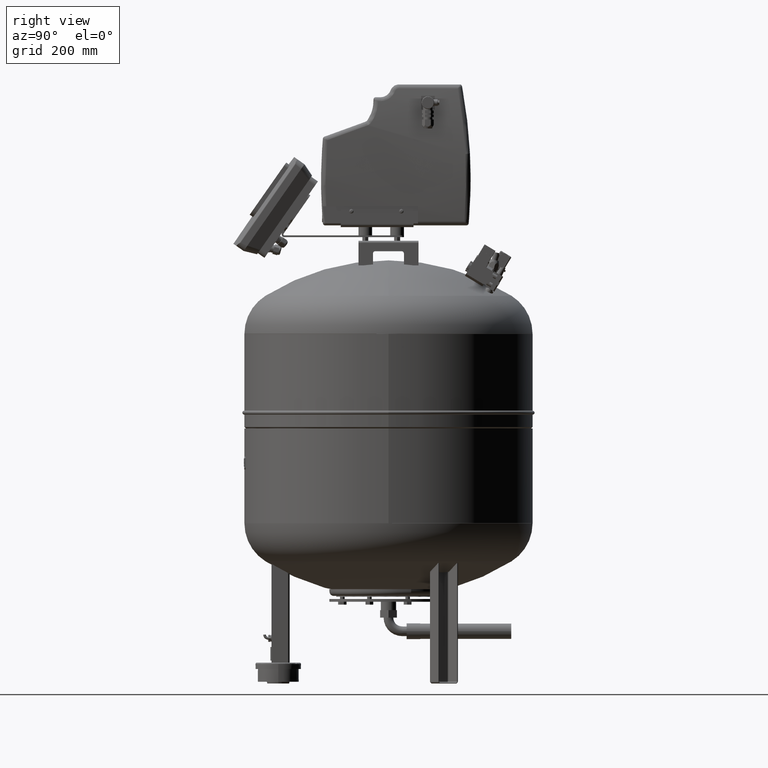
[diagram: clean part render]
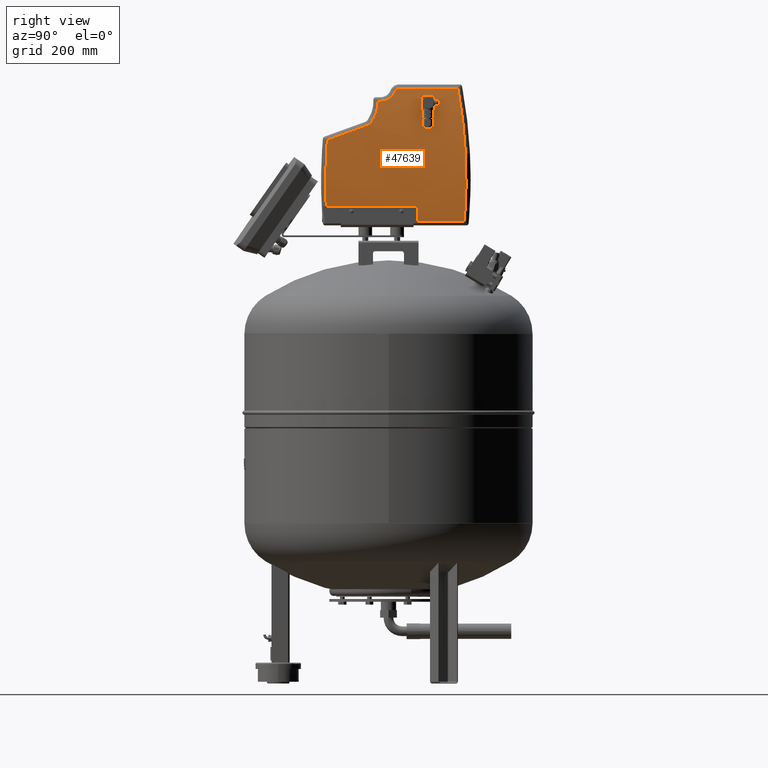
[diagram: same view with one face highlighted and labeled with its STEP entity id]
A machine part, right view. The second image highlights one B-rep face of the part: STEP entity #47639.
In plain terms, the highlighted cylindrical surface (partial cylindrical patch) has radius 1323.98 mm, axis along (-0, -1, -0).
Its self-contained STEP definition (entity closure, byte-faithful):
#46781=AXIS2_PLACEMENT_3D('Circle Axis2P3D',#46779,#46780,$) ;
#46829=AXIS2_PLACEMENT_3D('Circle Axis2P3D',#46827,#46828,$) ;
#47319=AXIS2_PLACEMENT_3D('Cylinder Axis2P3D',#47316,#47317,#47318) ;
#47332=AXIS2_PLACEMENT_3D('Circle Axis2P3D',#47330,#47331,$) ;
#46748=CARTESIAN_POINT('Line Origine',(81.2272163518,86.7705574858,1263.)) ;
#46752=CARTESIAN_POINT('Vertex',(81.2272163525,101.770557486,1263.)) ;
#46754=CARTESIAN_POINT('Vertex',(81.2272163525,71.7705574855,1263.)) ;
#46779=CARTESIAN_POINT('Axis2P3D Location',(-1233.979346,101.770557486,1110.83887861)) ;
#46783=CARTESIAN_POINT('Vertex',(77.4087103628,101.770557486,1293.)) ;
#46803=CARTESIAN_POINT('Line Origine',(77.4087103624,86.7705574858,1293.)) ;
#46807=CARTESIAN_POINT('Vertex',(77.4087103628,71.7705574855,1293.)) ;
#46827=CARTESIAN_POINT('Axis2P3D Location',(-1233.979346,71.7705574858,1110.83887861)) ;
#47316=CARTESIAN_POINT('Axis2P3D Location',(-1233.97935138,16.,1110.83887792)) ;
#47321=CARTESIAN_POINT('Line Origine',(88.6014415452,16.,1050.)) ;
#47325=CARTESIAN_POINT('Vertex',(88.6014415454,-136.890331376,1050.)) ;
#47327=CARTESIAN_POINT('Vertex',(88.6014415452,64.9949999992,1050.)) ;
#47330=CARTESIAN_POINT('Axis2P3D Location',(-1233.97935138,64.9949999992,1110.83887792)) ;
#47334=CARTESIAN_POINT('Vertex',(86.6911511569,64.9949999992,1017.29345254)) ;
#47337=CARTESIAN_POINT('Line Origine',(86.6911511569,16.,1017.29345254)) ;
#47341=CARTESIAN_POINT('Vertex',(86.6911511569,166.840028236,1017.29345254)) ;
#47345=CARTESIAN_POINT('Control Point',(86.9578729555,167.152394978,1021.13841947)) ;
#47346=CARTESIAN_POINT('Control Point',(86.8708201175,167.050382123,1019.85647135)) ;
#47347=CARTESIAN_POINT('Control Point',(86.7819142039,166.94616983,1018.57484329)) ;
#47348=CARTESIAN_POINT('Control Point',(86.6911601925,166.839763282,1017.2935801)) ;
#47349=CARTESIAN_POINT('Vertex',(86.9578729555,167.152394978,1021.13841947)) ;
#47353=CARTESIAN_POINT('Control Point',(88.8833229022,169.301893403,1165.20493232)) ;
#47354=CARTESIAN_POINT('Control Point',(89.1044834662,169.568867599,1159.82354023)) ;
#47355=CARTESIAN_POINT('Control Point',(89.2983257278,169.803434048,1154.43990403)) ;
#47356=CARTESIAN_POINT('Control Point',(89.4648009935,170.005506811,1149.05527352)) ;
#47357=CARTESIAN_POINT('Control Point',(89.8624005501,170.490443968,1133.65759643)) ;
#47358=CARTESIAN_POINT('Control Point',(90.0362221517,170.71047628,1118.24027209)) ;
#47359=CARTESIAN_POINT('Control Point',(90.0543567521,170.741239123,1108.22443878)) ;
#47360=CARTESIAN_POINT('Control Point',(89.8746861478,170.549664525,1084.75502128)) ;
#47361=CARTESIAN_POINT('Control Point',(89.1753687143,169.743027885,1061.30273919)) ;
#47362=CARTESIAN_POINT('Control Point',(88.6052936797,169.080392259,1047.89950741)) ;
#47363=CARTESIAN_POINT('Control Point',(87.8655141937,168.216014226,1034.50442806)) ;
#47364=CARTESIAN_POINT('Control Point',(86.9578729555,167.152394978,1021.13841947)) ;
#47365=CARTESIAN_POINT('Vertex',(88.8833229022,169.301893403,1165.20493232)) ;
#47369=CARTESIAN_POINT('Control Point',(75.0467727337,152.7385902,1309.26248858)) ;
#47370=CARTESIAN_POINT('Control Point',(78.2348796009,156.552507812,1288.23013683)) ;
#47371=CARTESIAN_POINT('Control Point',(81.0159815425,159.879255108,1267.03210556)) ;
#47372=CARTESIAN_POINT('Control Point',(83.3897371833,162.715167039,1245.57455088)) ;
#47373=CARTESIAN_POINT('Control Point',(85.9896810037,165.825441092,1216.6910348)) ;
#47374=CARTESIAN_POINT('Control Point',(87.799685412,167.997168164,1187.68836826)) ;
#47375=CARTESIAN_POINT('Control Point',(88.2139424155,168.494955965,1180.19764632)) ;
#47376=CARTESIAN_POINT('Control Point',(88.5751535038,168.929886406,1172.70346792)) ;
#47377=CARTESIAN_POINT('Control Point',(88.8833229022,169.301893403,1165.20493232)) ;
#47378=CARTESIAN_POINT('Vertex',(75.0467727337,152.7385902,1309.26248858)) ;
#47382=CARTESIAN_POINT('Control Point',(75.0107574565,152.695505276,1309.49994066)) ;
#47383=CARTESIAN_POINT('Control Point',(75.0227694668,152.709875197,1309.42079277)) ;
#47384=CARTESIAN_POINT('Control Point',(75.034774559,152.724236838,1309.34164208)) ;
#47385=CARTESIAN_POINT('Control Point',(75.0467727337,152.7385902,1309.26248858)) ;
#47386=CARTESIAN_POINT('Vertex',(75.0107574565,152.695505276,1309.49994066)) ;
#47389=CARTESIAN_POINT('Line Origine',(75.0106742755,16.,1309.50048874)) ;
#47393=CARTESIAN_POINT('Vertex',(75.0106742755,23.3788220938,1309.50048874)) ;
#47397=CARTESIAN_POINT('Control Point',(75.1261803748,19.5625621211,1308.73791685)) ;
#47398=CARTESIAN_POINT('Control Point',(75.0695719938,20.4625917182,1309.11238226)) ;
#47399=CARTESIAN_POINT('Control Point',(75.0301142228,21.4208404933,1309.3724105)) ;
#47400=CARTESIAN_POINT('Control Point',(75.0106838062,22.4033226956,1309.50042594)) ;
#47401=CARTESIAN_POINT('Control Point',(75.0106742755,23.3788220938,1309.50048874)) ;
#47402=CARTESIAN_POINT('Vertex',(75.1261803748,19.5625621211,1308.73791685)) ;
#47406=CARTESIAN_POINT('Control Point',(75.1350458919,19.4246187811,1308.67926241)) ;
#47407=CARTESIAN_POINT('Control Point',(75.1320365394,19.4704599168,1308.69917536)) ;
#47408=CARTESIAN_POINT('Control Point',(75.1290810981,19.516442857,1308.71872851)) ;
#47409=CARTESIAN_POINT('Control Point',(75.1261803748,19.5625621211,1308.73791685)) ;
#47410=CARTESIAN_POINT('Vertex',(75.1350458919,19.4246187811,1308.67926241)) ;
#47414=CARTESIAN_POINT('Control Point',(75.4203416513,16.5468196525,1306.78215228)) ;
#47415=CARTESIAN_POINT('Control Point',(75.3023214702,17.384589973,1307.57082742)) ;
#47416=CARTESIAN_POINT('Control Point',(75.2044624846,18.3672034368,1308.21993121)) ;
#47417=CARTESIAN_POINT('Control Point',(75.1350458919,19.4246187811,1308.67926241)) ;
#47418=CARTESIAN_POINT('Vertex',(75.4203416513,16.5468196525,1306.78215228)) ;
#47422=CARTESIAN_POINT('Control Point',(75.4452008073,16.3745612409,1306.6159578)) ;
#47423=CARTESIAN_POINT('Control Point',(75.4368178823,16.4312611379,1306.67202569)) ;
#47424=CARTESIAN_POINT('Control Point',(75.4285307164,16.4886892922,1306.72742849)) ;
#47425=CARTESIAN_POINT('Control Point',(75.4203416513,16.5468196525,1306.78215228)) ;
#47426=CARTESIAN_POINT('Vertex',(75.4452008073,16.3745612409,1306.6159578)) ;
#47430=CARTESIAN_POINT('Control Point',(75.6936301361,15.0161254024,1304.94710641)) ;
#47431=CARTESIAN_POINT('Control Point',(75.6043587762,15.4079406909,1305.54943166)) ;
#47432=CARTESIAN_POINT('Control Point',(75.5207353613,15.8636654094,1306.11075669)) ;
#47433=CARTESIAN_POINT('Control Point',(75.4452008073,16.3745612409,1306.6159578)) ;
#47434=CARTESIAN_POINT('Vertex',(75.6936301361,15.0161254024,1304.94710641)) ;
#47438=CARTESIAN_POINT('Control Point',(75.9681420673,14.0624051858,1303.08582143)) ;
#47439=CARTESIAN_POINT('Control Point',(75.8726985532,14.3141458122,1303.73616203)) ;
#47440=CARTESIAN_POINT('Control Point',(75.7804907543,14.6348909476,1304.36104673)) ;
#47441=CARTESIAN_POINT('Control Point',(75.6936301361,15.0161254024,1304.94710641)) ;
#47442=CARTESIAN_POINT('Vertex',(75.9681420673,14.0624051858,1303.08582143)) ;
#47446=CARTESIAN_POINT('Control Point',(77.5635559464,6.99256394617,1291.88175991)) ;
#47447=CARTESIAN_POINT('Control Point',(77.2967628801,8.81868111297,1293.81450949)) ;
#47448=CARTESIAN_POINT('Control Point',(76.9997569086,10.4664050283,1295.93987209)) ;
#47449=CARTESIAN_POINT('Control Point',(76.6759054092,11.9105149295,1298.22273058)) ;
#47450=CARTESIAN_POINT('Control Point',(76.3308358453,13.1054236949,1300.61446976)) ;
#47451=CARTESIAN_POINT('Control Point',(75.9681420673,14.0624051858,1303.08582143)) ;
#47452=CARTESIAN_POINT('Vertex',(77.5635559464,6.99256394617,1291.88175991)) ;
#47456=CARTESIAN_POINT('Control Point',(77.572027373,6.93442104343,1291.8203791)) ;
#47457=CARTESIAN_POINT('Control Point',(77.5692072896,6.95382934608,1291.84081591)) ;
#47458=CARTESIAN_POINT('Control Point',(77.5663834793,6.9732103459,1291.8612762)) ;
#47459=CARTESIAN_POINT('Control Point',(77.5635559464,6.99256394617,1291.88175991)) ;
#47460=CARTESIAN_POINT('Vertex',(77.572027373,6.93442104343,1291.8203791)) ;
#47464=CARTESIAN_POINT('Control Point',(77.6143061677,6.63943890117,1291.51372498)) ;
#47465=CARTESIAN_POINT('Control Point',(77.6003079346,6.73844913295,1291.61534396)) ;
#47466=CARTESIAN_POINT('Control Point',(77.586214817,6.83678059424,1291.71756439)) ;
#47467=CARTESIAN_POINT('Control Point',(77.572027373,6.93442104343,1291.8203791)) ;
#47468=CARTESIAN_POINT('Vertex',(77.6143061677,6.63943890117,1291.51372498)) ;
#47472=CARTESIAN_POINT('Control Point',(78.5445307307,-2.88756842972,1284.62720252)) ;
#47473=CARTESIAN_POINT('Control Point',(78.3735170249,-0.235397834258,1285.91877129)) ;
#47474=CARTESIAN_POINT('Control Point',(78.1585933552,2.27365261262,1287.529044)) ;
#47475=CARTESIAN_POINT('Control Point',(77.9046041785,4.58614595112,1289.4063313)) ;
#47476=CARTESIAN_POINT('Control Point',(77.6143061677,6.63943890117,1291.51372498)) ;
#47477=CARTESIAN_POINT('Vertex',(78.5445307307,-2.88756842972,1284.62720252)) ;
#47481=CARTESIAN_POINT('Control Point',(78.5907045303,-3.62748755328,1284.27812148)) ;
#47482=CARTESIAN_POINT('Control Point',(78.5757407513,-3.37952247582,1284.39136579)) ;
#47483=CARTESIAN_POINT('Control Point',(78.5603471779,-3.13285822146,1284.50774994)) ;
#47484=CARTESIAN_POINT('Control Point',(78.5445307307,-2.88756842972,1284.62720252)) ;
#47485=CARTESIAN_POINT('Vertex',(78.5907045303,-3.62748755328,1284.27812148)) ;
#47489=CARTESIAN_POINT('Control Point',(78.626080572,-4.22984722962,1284.01018873)) ;
#47490=CARTESIAN_POINT('Control Point',(78.6145585691,-4.02816856745,1284.09752331)) ;
#47491=CARTESIAN_POINT('Control Point',(78.6027665697,-3.82736784789,1284.18683723)) ;
#47492=CARTESIAN_POINT('Control Point',(78.5907045303,-3.62748755328,1284.27812148)) ;
#47493=CARTESIAN_POINT('Vertex',(78.626080572,-4.22984722962,1284.01018873)) ;
#47497=CARTESIAN_POINT('Control Point',(78.8934297769,-10.6011532485,1281.9715264)) ;
#47498=CARTESIAN_POINT('Control Point',(78.8323045085,-8.41654794223,1282.44045914)) ;
#47499=CARTESIAN_POINT('Control Point',(78.7430881291,-6.27792235046,1283.12329382)) ;
#47500=CARTESIAN_POINT('Control Point',(78.626080572,-4.22984722962,1284.01018873)) ;
#47501=CARTESIAN_POINT('Vertex',(78.8934297769,-10.6011532485,1281.9715264)) ;
#47505=CARTESIAN_POINT('Control Point',(78.9919677211,-17.7035779525,1281.2138705)) ;
#47506=CARTESIAN_POINT('Control Point',(78.9919683696,-15.3199229715,1281.2138655)) ;
#47507=CARTESIAN_POINT('Control Point',(78.9587117616,-12.934318794,1281.47070472)) ;
#47508=CARTESIAN_POINT('Control Point',(78.8934297769,-10.6011532485,1281.9715264)) ;
#47509=CARTESIAN_POINT('Vertex',(78.9919677211,-17.7035779525,1281.2138705)) ;
#47512=CARTESIAN_POINT('Line Origine',(78.9919677211,16.,1281.2138705)) ;
#47516=CARTESIAN_POINT('Vertex',(78.9919677211,-22.8705101553,1281.2138705)) ;
#47520=CARTESIAN_POINT('Control Point',(79.4460018715,-22.977692871,1277.67761537)) ;
#47521=CARTESIAN_POINT('Control Point',(79.2963830396,-22.916427927,1278.85547832)) ;
#47522=CARTESIAN_POINT('Control Point',(79.1449877883,-22.8806403816,1280.03464301)) ;
#47523=CARTESIAN_POINT('Control Point',(78.9919585918,-22.8705290072,1281.21394086)) ;
#47524=CARTESIAN_POINT('Vertex',(79.4460018715,-22.977692871,1277.67761537)) ;
#47528=CARTESIAN_POINT('Control Point',(81.4312687654,-25.5256594215,1261.22578988)) ;
#47529=CARTESIAN_POINT('Control Point',(80.8170590949,-24.1213484099,1266.59818508)) ;
#47530=CARTESIAN_POINT('Control Point',(80.1515082933,-23.2665790414,1272.12356938)) ;
#47531=CARTESIAN_POINT('Control Point',(79.4460018715,-22.977692871,1277.67761537)) ;
#47532=CARTESIAN_POINT('Vertex',(81.4312687654,-25.5256594215,1261.22578988)) ;
#47536=CARTESIAN_POINT('Control Point',(82.3756788402,-28.2617637428,1252.72177785)) ;
#47537=CARTESIAN_POINT('Control Point',(82.075301314,-27.1931913187,1255.50860747)) ;
#47538=CARTESIAN_POINT('Control Point',(81.7600547611,-26.2773860977,1258.34995058)) ;
#47539=CARTESIAN_POINT('Control Point',(81.4312687654,-25.5256594215,1261.22578988)) ;
#47540=CARTESIAN_POINT('Vertex',(82.3756788402,-28.2617637428,1252.72177785)) ;
#47544=CARTESIAN_POINT('Control Point',(84.2019426608,-37.9486657456,1234.61043734)) ;
#47545=CARTESIAN_POINT('Control Point',(83.6781827536,-33.9822576576,1240.18854038)) ;
#47546=CARTESIAN_POINT('Control Point',(83.0665238083,-30.7193972797,1246.3122863)) ;
#47547=CARTESIAN_POINT('Control Point',(82.3756788402,-28.2617637428,1252.72177785)) ;
#47548=CARTESIAN_POINT('Vertex',(84.2019426608,-37.9486657456,1234.61043734)) ;
#47552=CARTESIAN_POINT('Control Point',(84.8581533226,-47.366049055,1227.41056861)) ;
#47553=CARTESIAN_POINT('Control Point',(84.8118195313,-45.9353161585,1227.93476742)) ;
#47554=CARTESIAN_POINT('Control Point',(84.7526647549,-44.5501355179,1228.60104731)) ;
#47555=CARTESIAN_POINT('Control Point',(84.6816279415,-43.2304638067,1229.39555748)) ;
#47556=CARTESIAN_POINT('Control Point',(84.5637115156,-41.4730553648,1230.70149888)) ;
#47557=CARTESIAN_POINT('Control Point',(84.4232967488,-39.9107992904,1232.23125596)) ;
#47558=CARTESIAN_POINT('Control Point',(84.3788048791,-39.4563881613,1232.71365044)) ;
#47559=CARTESIAN_POINT('Control Point',(84.3171175988,-38.8798746636,1233.37902553)) ;
#47560=CARTESIAN_POINT('Control Point',(84.2522770992,-38.3417961196,1234.07338398)) ;
#47561=CARTESIAN_POINT('Control Point',(84.2356863773,-38.2082273622,1234.25073026)) ;
#47562=CARTESIAN_POINT('Control Point',(84.2189084469,-38.077191986,1234.42974977)) ;
#47563=CARTESIAN_POINT('Control Point',(84.2019426608,-37.9486657456,1234.61043734)) ;
#47564=CARTESIAN_POINT('Vertex',(84.8581533226,-47.366049055,1227.41056861)) ;
#47568=CARTESIAN_POINT('Control Point',(87.2950678706,-134.575155476,1195.42748184)) ;
#47569=CARTESIAN_POINT('Control Point',(86.6121948111,-105.490588028,1206.09396247)) ;
#47570=CARTESIAN_POINT('Control Point',(85.7999423652,-76.4192031356,1216.75560853)) ;
#47571=CARTESIAN_POINT('Control Point',(84.8581533226,-47.366049055,1227.41056861)) ;
#47572=CARTESIAN_POINT('Vertex',(87.2950678706,-134.575155476,1195.42748184)) ;
#47576=CARTESIAN_POINT('Control Point',(89.9737438942,-138.151357701,1119.17700687)) ;
#47577=CARTESIAN_POINT('Control Point',(89.8775851509,-137.957132452,1134.44538021)) ;
#47578=CARTESIAN_POINT('Control Point',(89.5610962137,-137.501847388,1149.71925561)) ;
#47579=CARTESIAN_POINT('Control Point',(89.0252915665,-136.786833122,1164.96280523)) ;
#47580=CARTESIAN_POINT('Control Point',(88.2692442176,-135.81066278,1180.21084246)) ;
#47581=CARTESIAN_POINT('Control Point',(87.2950678506,-134.575147431,1195.42748216)) ;
#47582=CARTESIAN_POINT('Vertex',(89.9737438942,-138.151357701,1119.17700687)) ;
#47586=CARTESIAN_POINT('Control Point',(89.9153691091,-138.204879264,1095.86917713)) ;
#47587=CARTESIAN_POINT('Control Point',(90.0032077999,-138.268016964,1103.63748063)) ;
#47588=CARTESIAN_POINT('Control Point',(90.0226757638,-138.250192235,1111.40745803)) ;
#47589=CARTESIAN_POINT('Control Point',(89.9737438942,-138.151357701,1119.17700687)) ;
#47590=CARTESIAN_POINT('Vertex',(89.9153691091,-138.204879264,1095.86917713)) ;
#47594=CARTESIAN_POINT('Control Point',(88.601422092,-136.890310269,1049.99957711)) ;
#47595=CARTESIAN_POINT('Control Point',(89.3039728933,-137.641955595,1065.2722737)) ;
#47596=CARTESIAN_POINT('Control Point',(89.7423478522,-138.080513064,1080.56747326)) ;
#47597=CARTESIAN_POINT('Control Point',(89.9153691091,-138.204879264,1095.86917713)) ;
#46749=DIRECTION('Vector Direction',(0.,-1.,0.)) ;
#46780=DIRECTION('Axis2P3D Direction',(0.,1.,-0.)) ;
#46804=DIRECTION('Vector Direction',(0.,1.,0.)) ;
#46828=DIRECTION('Axis2P3D Direction',(0.,-1.,0.)) ;
#47317=DIRECTION('Axis2P3D Direction',(-1.83696984533E-016,-1.,-1.20502386872E-024)) ;
#47318=DIRECTION('Axis2P3D XDirection',(0.996978804846,-1.83142E-016,-0.0776740798933)) ;
#47322=DIRECTION('Vector Direction',(-1.83695192391E-016,-1.,0.)) ;
#47331=DIRECTION('Axis2P3D Direction',(-1.83696984533E-016,-1.,-1.20502386872E-024)) ;
#47338=DIRECTION('Vector Direction',(-1.83695192391E-016,-1.,0.)) ;
#47390=DIRECTION('Vector Direction',(-1.83695192391E-016,-1.,0.)) ;
#47513=DIRECTION('Vector Direction',(-1.83695192391E-016,-1.,0.)) ;
#46750=VECTOR('Line Direction',#46749,1.) ;
#46805=VECTOR('Line Direction',#46804,1.) ;
#47323=VECTOR('Line Direction',#47322,1.) ;
#47339=VECTOR('Line Direction',#47338,1.) ;
#47391=VECTOR('Line Direction',#47390,1.) ;
#47514=VECTOR('Line Direction',#47513,1.) ;
#47600=ORIENTED_EDGE('',*,*,#47329,.T.) ;
#47601=ORIENTED_EDGE('',*,*,#47336,.T.) ;
#47602=ORIENTED_EDGE('',*,*,#47343,.F.) ;
#47603=ORIENTED_EDGE('',*,*,#47351,.F.) ;
#47604=ORIENTED_EDGE('',*,*,#47367,.F.) ;
#47605=ORIENTED_EDGE('',*,*,#47380,.F.) ;
#47606=ORIENTED_EDGE('',*,*,#47388,.F.) ;
#47607=ORIENTED_EDGE('',*,*,#47395,.F.) ;
#47608=ORIENTED_EDGE('',*,*,#47404,.F.) ;
#47609=ORIENTED_EDGE('',*,*,#47412,.F.) ;
#47610=ORIENTED_EDGE('',*,*,#47420,.F.) ;
#47611=ORIENTED_EDGE('',*,*,#47428,.F.) ;
#47612=ORIENTED_EDGE('',*,*,#47436,.F.) ;
#47613=ORIENTED_EDGE('',*,*,#47444,.F.) ;
#47614=ORIENTED_EDGE('',*,*,#47454,.F.) ;
#47615=ORIENTED_EDGE('',*,*,#47462,.F.) ;
#47616=ORIENTED_EDGE('',*,*,#47470,.F.) ;
#47617=ORIENTED_EDGE('',*,*,#47479,.F.) ;
#47618=ORIENTED_EDGE('',*,*,#47487,.F.) ;
#47619=ORIENTED_EDGE('',*,*,#47495,.F.) ;
#47620=ORIENTED_EDGE('',*,*,#47503,.F.) ;
#47621=ORIENTED_EDGE('',*,*,#47511,.F.) ;
#47622=ORIENTED_EDGE('',*,*,#47518,.F.) ;
#47623=ORIENTED_EDGE('',*,*,#47526,.F.) ;
#47624=ORIENTED_EDGE('',*,*,#47534,.F.) ;
#47625=ORIENTED_EDGE('',*,*,#47542,.F.) ;
#47626=ORIENTED_EDGE('',*,*,#47550,.F.) ;
#47627=ORIENTED_EDGE('',*,*,#47566,.F.) ;
#47628=ORIENTED_EDGE('',*,*,#47574,.F.) ;
#47629=ORIENTED_EDGE('',*,*,#47584,.F.) ;
#47630=ORIENTED_EDGE('',*,*,#47592,.F.) ;
#47631=ORIENTED_EDGE('',*,*,#47598,.F.) ;
#47634=ORIENTED_EDGE('',*,*,#46831,.T.) ;
#47635=ORIENTED_EDGE('',*,*,#46809,.T.) ;
#47636=ORIENTED_EDGE('',*,*,#46785,.T.) ;
#47637=ORIENTED_EDGE('',*,*,#46756,.T.) ;
#47638=FACE_BOUND('',#47633,.T.) ;
#47639=ADVANCED_FACE('299',(#47632,#47638),#47320,.T.) ;
#47344=B_SPLINE_CURVE_WITH_KNOTS('',3,(#47345,#47346,#47347,#47348),.UNSPECIFIED.,.F.,.U.,(4,4),(410.509509864,415.978102918),.UNSPECIFIED.) ;
#47352=B_SPLINE_CURVE_WITH_KNOTS('',5,(#47353,#47354,#47355,#47356,#47357,#47358,#47359,#47360,#47361,#47362,#47363,#47364),.UNSPECIFIED.,.F.,.U.,(6,3,3,6),(206.457334169,244.620170925,315.48062311,410.509509864),.UNSPECIFIED.) ;
#47368=B_SPLINE_CURVE_WITH_KNOTS('',5,(#47369,#47370,#47371,#47372,#47373,#47374,#47375,#47376,#47377),.UNSPECIFIED.,.F.,.U.,(6,3,6),(0.345335256982,153.280500875,206.457334169),.UNSPECIFIED.) ;
#47381=B_SPLINE_CURVE_WITH_KNOTS('',3,(#47382,#47383,#47384,#47385),.UNSPECIFIED.,.F.,.U.,(4,4),(0.,0.345335256982),.UNSPECIFIED.) ;
#47396=B_SPLINE_CURVE_WITH_KNOTS('',4,(#47397,#47398,#47399,#47400,#47401),.UNSPECIFIED.,.F.,.U.,(5,5),(0.,5.55421088015),.UNSPECIFIED.) ;
#47405=B_SPLINE_CURVE_WITH_KNOTS('',3,(#47406,#47407,#47408,#47409),.UNSPECIFIED.,.F.,.U.,(4,4),(5.26543603303,5.47889244509),.UNSPECIFIED.) ;
#47413=B_SPLINE_CURVE_WITH_KNOTS('',3,(#47414,#47415,#47416,#47417),.UNSPECIFIED.,.F.,.U.,(4,4),(0.341646904082,5.26543603303),.UNSPECIFIED.) ;
#47421=B_SPLINE_CURVE_WITH_KNOTS('',3,(#47422,#47423,#47424,#47425),.UNSPECIFIED.,.F.,.U.,(4,4),(0.,0.341646904082),.UNSPECIFIED.) ;
#47429=B_SPLINE_CURVE_WITH_KNOTS('',3,(#47430,#47431,#47432,#47433),.UNSPECIFIED.,.F.,.U.,(4,4),(2.99528632918,6.07370424992),.UNSPECIFIED.) ;
#47437=B_SPLINE_CURVE_WITH_KNOTS('',3,(#47438,#47439,#47440,#47441),.UNSPECIFIED.,.F.,.U.,(4,4),(0.,2.99528632918),.UNSPECIFIED.) ;
#47445=B_SPLINE_CURVE_WITH_KNOTS('',5,(#47446,#47447,#47448,#47449,#47450,#47451),.UNSPECIFIED.,.F.,.U.,(6,6),(0.,18.9750843805),.UNSPECIFIED.) ;
#47455=B_SPLINE_CURVE_WITH_KNOTS('',3,(#47456,#47457,#47458,#47459),.UNSPECIFIED.,.F.,.U.,(4,4),(18.5562582934,18.6769196194),.UNSPECIFIED.) ;
#47463=B_SPLINE_CURVE_WITH_KNOTS('',3,(#47464,#47465,#47466,#47467),.UNSPECIFIED.,.F.,.U.,(4,4),(17.9492280808,18.5562582934),.UNSPECIFIED.) ;
#47471=B_SPLINE_CURVE_WITH_KNOTS('',4,(#47472,#47473,#47474,#47475,#47476),.UNSPECIFIED.,.F.,.U.,(5,5),(1.16428463078,17.9492280808),.UNSPECIFIED.) ;
#47480=B_SPLINE_CURVE_WITH_KNOTS('',3,(#47481,#47482,#47483,#47484),.UNSPECIFIED.,.F.,.U.,(4,4),(0.,1.16428463078),.UNSPECIFIED.) ;
#47488=B_SPLINE_CURVE_WITH_KNOTS('',3,(#47489,#47490,#47491,#47492),.UNSPECIFIED.,.F.,.U.,(4,4),(19.7095073903,20.648016786),.UNSPECIFIED.) ;
#47496=B_SPLINE_CURVE_WITH_KNOTS('',3,(#47497,#47498,#47499,#47500),.UNSPECIFIED.,.F.,.U.,(4,4),(10.178812753,19.7095073903),.UNSPECIFIED.) ;
#47504=B_SPLINE_CURVE_WITH_KNOTS('',3,(#47505,#47506,#47507,#47508),.UNSPECIFIED.,.F.,.U.,(4,4),(0.,10.178812753),.UNSPECIFIED.) ;
#47519=B_SPLINE_CURVE_WITH_KNOTS('',3,(#47520,#47521,#47522,#47523),.UNSPECIFIED.,.F.,.U.,(4,4),(23.8013449768,28.8489665497),.UNSPECIFIED.) ;
#47527=B_SPLINE_CURVE_WITH_KNOTS('',3,(#47528,#47529,#47530,#47531),.UNSPECIFIED.,.F.,.U.,(4,4),(0.,23.8013449768),.UNSPECIFIED.) ;
#47535=B_SPLINE_CURVE_WITH_KNOTS('',3,(#47536,#47537,#47538,#47539),.UNSPECIFIED.,.F.,.U.,(4,4),(29.3029485319,42.0437914097),.UNSPECIFIED.) ;
#47543=B_SPLINE_CURVE_WITH_KNOTS('',3,(#47544,#47545,#47546,#47547),.UNSPECIFIED.,.F.,.U.,(4,4),(0.,29.3029485319),.UNSPECIFIED.) ;
#47551=B_SPLINE_CURVE_WITH_KNOTS('',5,(#47552,#47553,#47554,#47555,#47556,#47557,#47558,#47559,#47560,#47561,#47562,#47563),.UNSPECIFIED.,.F.,.U.,(6,3,3,6),(0.,10.8189757519,15.4742906013,17.0489281788),.UNSPECIFIED.) ;
#47567=B_SPLINE_CURVE_WITH_KNOTS('',3,(#47568,#47569,#47570,#47571),.UNSPECIFIED.,.F.,.U.,(4,4),(0.,135.433024621),.UNSPECIFIED.) ;
#47575=B_SPLINE_CURVE_WITH_KNOTS('',5,(#47576,#47577,#47578,#47579,#47580,#47581),.UNSPECIFIED.,.F.,.U.,(6,6),(0.,108.038959906),.UNSPECIFIED.) ;
#47585=B_SPLINE_CURVE_WITH_KNOTS('',3,(#47586,#47587,#47588,#47589),.UNSPECIFIED.,.F.,.U.,(4,4),(64.9752985827,97.9616799446),.UNSPECIFIED.) ;
#47593=B_SPLINE_CURVE_WITH_KNOTS('',3,(#47594,#47595,#47596,#47597),.UNSPECIFIED.,.F.,.U.,(4,4),(0.,64.9752985827),.UNSPECIFIED.) ;
#46782=CIRCLE('generated circle',#46781,1323.97934596) ;
#46830=CIRCLE('generated circle',#46829,1323.97934596) ;
#47333=CIRCLE('generated circle',#47332,1323.97935138) ;
#47320=CYLINDRICAL_SURFACE('generated cylinder',#47319,1323.97935138) ;
#46756=EDGE_CURVE('',#46753,#46755,#46751,.T.) ;
#46785=EDGE_CURVE('',#46784,#46753,#46782,.T.) ;
#46809=EDGE_CURVE('',#46808,#46784,#46806,.T.) ;
#46831=EDGE_CURVE('',#46755,#46808,#46830,.T.) ;
#47329=EDGE_CURVE('',#47326,#47328,#47324,.F.) ;
#47336=EDGE_CURVE('',#47328,#47335,#47333,.F.) ;
#47343=EDGE_CURVE('',#47342,#47335,#47340,.T.) ;
#47351=EDGE_CURVE('',#47350,#47342,#47344,.T.) ;
#47367=EDGE_CURVE('',#47366,#47350,#47352,.T.) ;
#47380=EDGE_CURVE('',#47379,#47366,#47368,.T.) ;
#47388=EDGE_CURVE('',#47387,#47379,#47381,.T.) ;
#47395=EDGE_CURVE('',#47394,#47387,#47392,.F.) ;
#47404=EDGE_CURVE('',#47403,#47394,#47396,.T.) ;
#47412=EDGE_CURVE('',#47411,#47403,#47405,.T.) ;
#47420=EDGE_CURVE('',#47419,#47411,#47413,.T.) ;
#47428=EDGE_CURVE('',#47427,#47419,#47421,.T.) ;
#47436=EDGE_CURVE('',#47435,#47427,#47429,.T.) ;
#47444=EDGE_CURVE('',#47443,#47435,#47437,.T.) ;
#47454=EDGE_CURVE('',#47453,#47443,#47445,.T.) ;
#47462=EDGE_CURVE('',#47461,#47453,#47455,.T.) ;
#47470=EDGE_CURVE('',#47469,#47461,#47463,.T.) ;
#47479=EDGE_CURVE('',#47478,#47469,#47471,.T.) ;
#47487=EDGE_CURVE('',#47486,#47478,#47480,.T.) ;
#47495=EDGE_CURVE('',#47494,#47486,#47488,.T.) ;
#47503=EDGE_CURVE('',#47502,#47494,#47496,.T.) ;
#47511=EDGE_CURVE('',#47510,#47502,#47504,.T.) ;
#47518=EDGE_CURVE('',#47517,#47510,#47515,.F.) ;
#47526=EDGE_CURVE('',#47525,#47517,#47519,.T.) ;
#47534=EDGE_CURVE('',#47533,#47525,#47527,.T.) ;
#47542=EDGE_CURVE('',#47541,#47533,#47535,.T.) ;
#47550=EDGE_CURVE('',#47549,#47541,#47543,.T.) ;
#47566=EDGE_CURVE('',#47565,#47549,#47551,.T.) ;
#47574=EDGE_CURVE('',#47573,#47565,#47567,.T.) ;
#47584=EDGE_CURVE('',#47583,#47573,#47575,.T.) ;
#47592=EDGE_CURVE('',#47591,#47583,#47585,.T.) ;
#47598=EDGE_CURVE('',#47326,#47591,#47593,.T.) ;
#47599=EDGE_LOOP('',(#47600,#47601,#47602,#47603,#47604,#47605,#47606,#47607,#47608,#47609,#47610,#47611,#47612,#47613,#47614,#47615,#47616,#47617,#47618,#47619,#47620,#47621,#47622,#47623,#47624,#47625,#47626,#47627,#47628,#47629,#47630,#47631)) ;
#47633=EDGE_LOOP('',(#47634,#47635,#47636,#47637)) ;
#47632=FACE_OUTER_BOUND('',#47599,.T.) ;
#46751=LINE('Line',#46748,#46750) ;
#46806=LINE('Line',#46803,#46805) ;
#47324=LINE('Line',#47321,#47323) ;
#47340=LINE('Line',#47337,#47339) ;
#47392=LINE('Line',#47389,#47391) ;
#47515=LINE('Line',#47512,#47514) ;
#46753=VERTEX_POINT('',#46752) ;
#46755=VERTEX_POINT('',#46754) ;
#46784=VERTEX_POINT('',#46783) ;
#46808=VERTEX_POINT('',#46807) ;
#47326=VERTEX_POINT('',#47325) ;
#47328=VERTEX_POINT('',#47327) ;
#47335=VERTEX_POINT('',#47334) ;
#47342=VERTEX_POINT('',#47341) ;
#47350=VERTEX_POINT('',#47349) ;
#47366=VERTEX_POINT('',#47365) ;
#47379=VERTEX_POINT('',#47378) ;
#47387=VERTEX_POINT('',#47386) ;
#47394=VERTEX_POINT('',#47393) ;
#47403=VERTEX_POINT('',#47402) ;
#47411=VERTEX_POINT('',#47410) ;
#47419=VERTEX_POINT('',#47418) ;
#47427=VERTEX_POINT('',#47426) ;
#47435=VERTEX_POINT('',#47434) ;
#47443=VERTEX_POINT('',#47442) ;
#47453=VERTEX_POINT('',#47452) ;
#47461=VERTEX_POINT('',#47460) ;
#47469=VERTEX_POINT('',#47468) ;
#47478=VERTEX_POINT('',#47477) ;
#47486=VERTEX_POINT('',#47485) ;
#47494=VERTEX_POINT('',#47493) ;
#47502=VERTEX_POINT('',#47501) ;
#47510=VERTEX_POINT('',#47509) ;
#47517=VERTEX_POINT('',#47516) ;
#47525=VERTEX_POINT('',#47524) ;
#47533=VERTEX_POINT('',#47532) ;
#47541=VERTEX_POINT('',#47540) ;
#47549=VERTEX_POINT('',#47548) ;
#47565=VERTEX_POINT('',#47564) ;
#47573=VERTEX_POINT('',#47572) ;
#47583=VERTEX_POINT('',#47582) ;
#47591=VERTEX_POINT('',#47590) ;